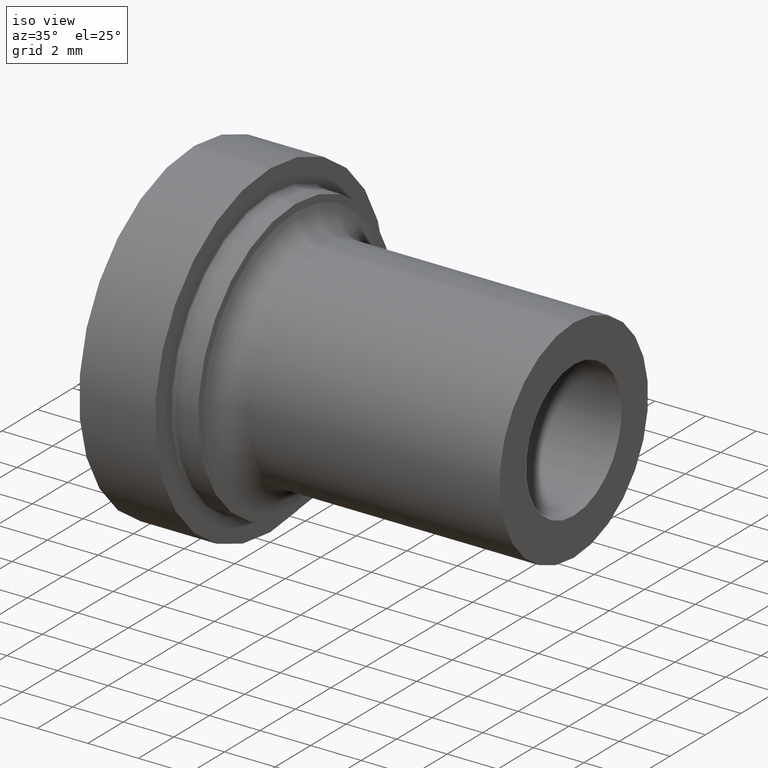
[diagram: clean part render]
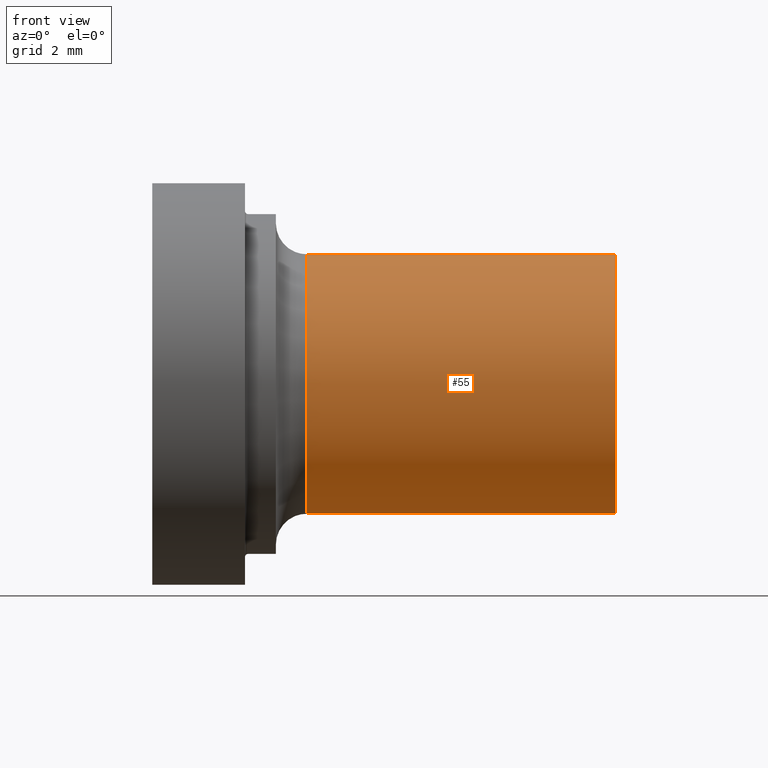
[diagram: tour spotlight — one face highlighted and labeled with its STEP entity id]
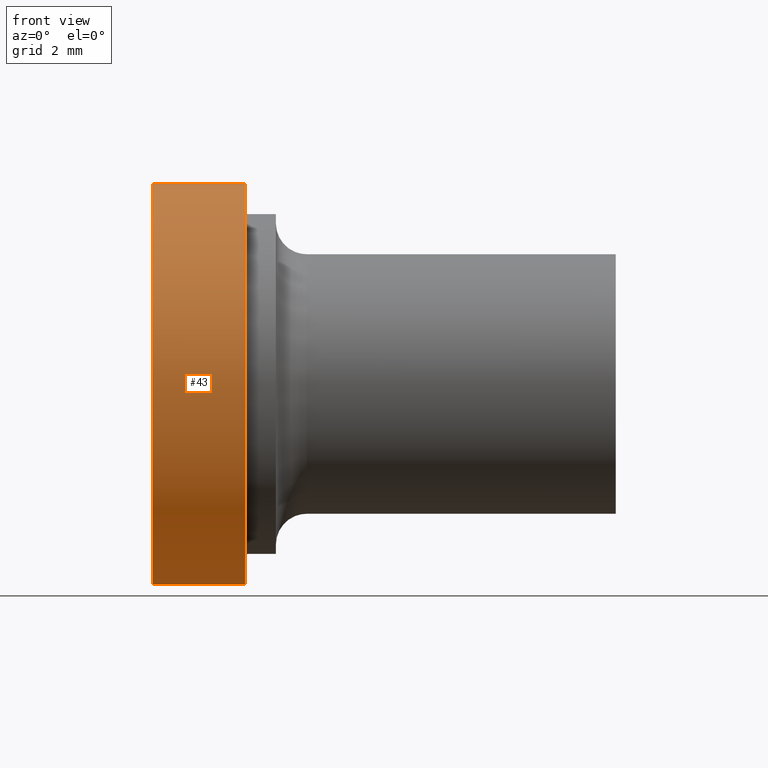
[diagram: tour spotlight — one face highlighted and labeled with its STEP entity id]
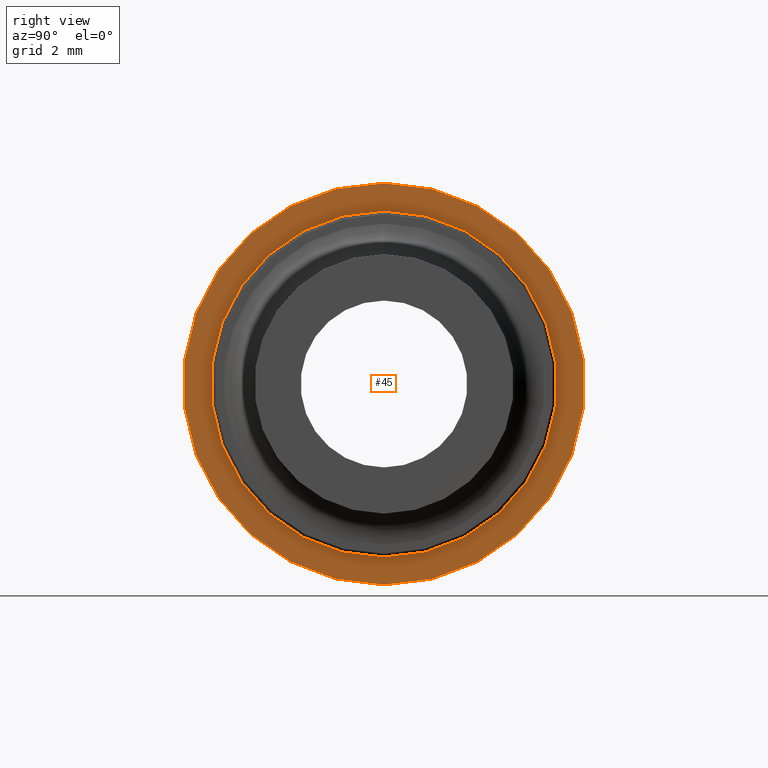
[diagram: tour spotlight — one face highlighted and labeled with its STEP entity id]
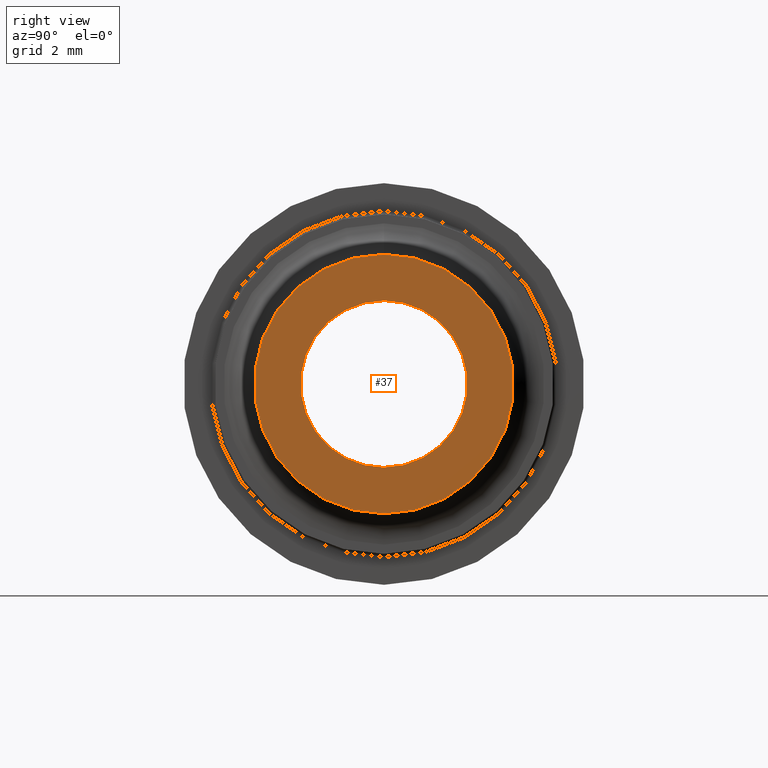
[diagram: tour spotlight — one face highlighted and labeled with its STEP entity id]
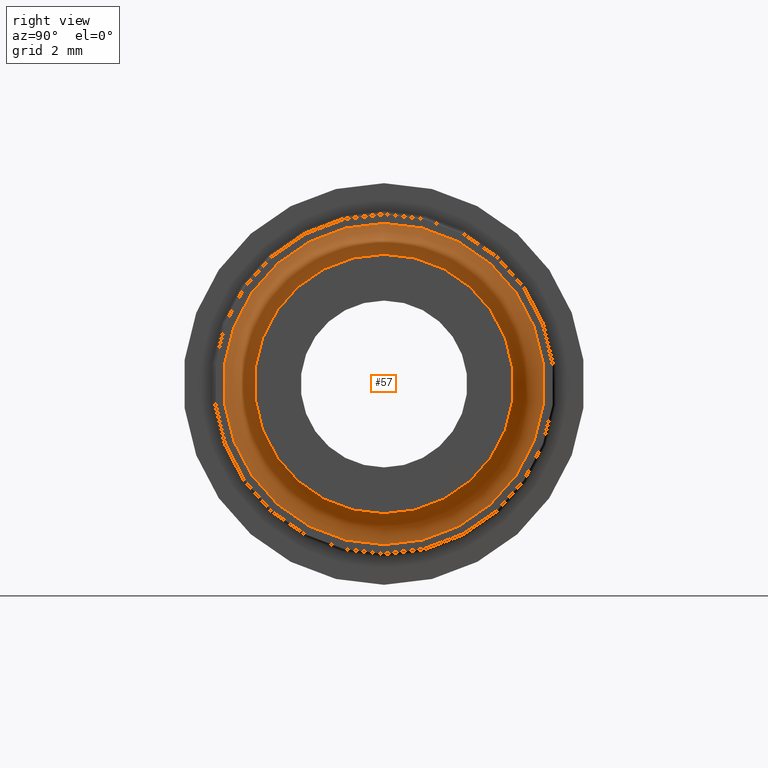
[diagram: tour spotlight — one face highlighted and labeled with its STEP entity id]
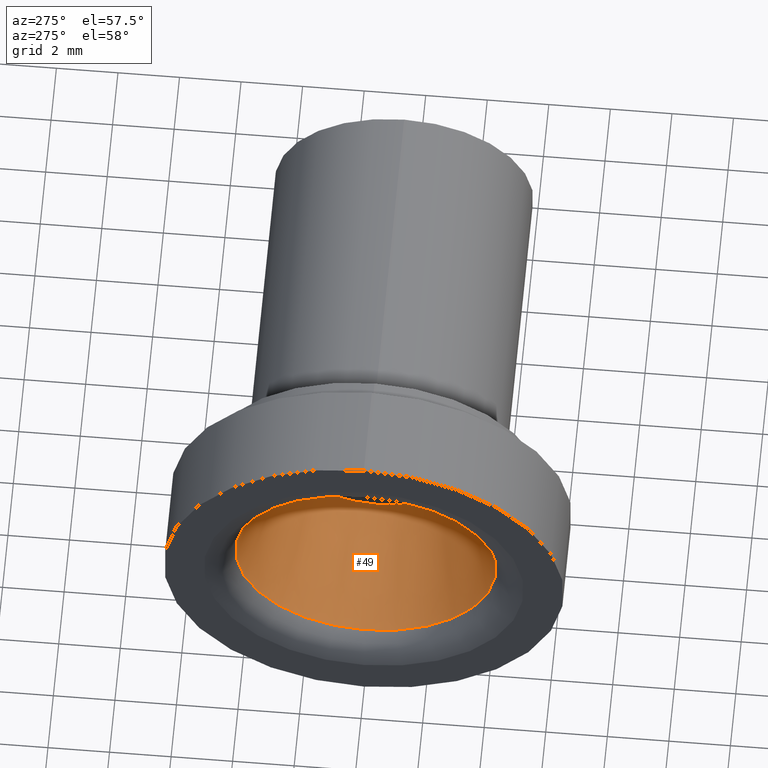
[diagram: tour spotlight — one face highlighted and labeled with its STEP entity id]
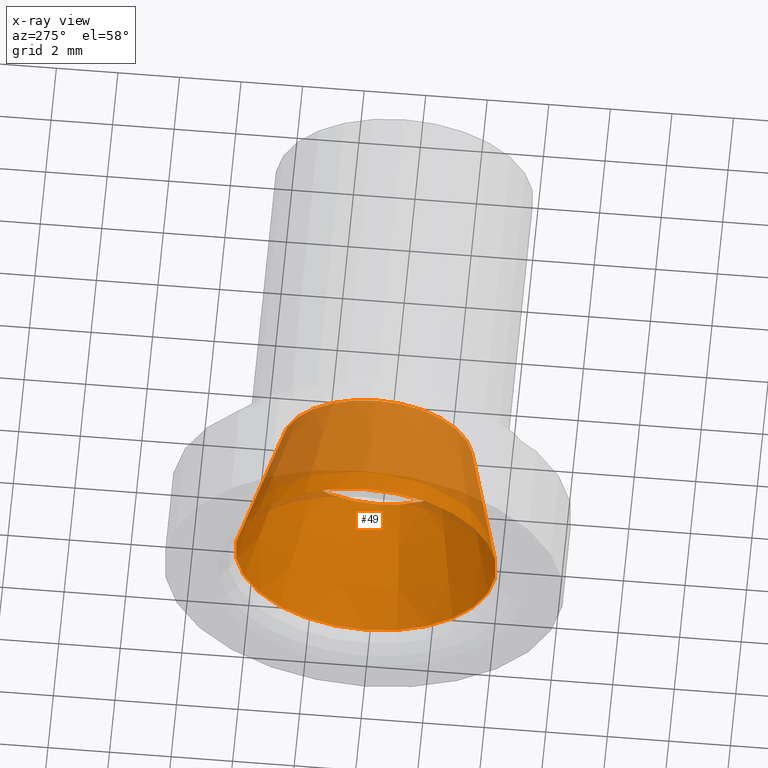
[diagram: x-ray of the same camera — body ghosted, this tour face saturated]
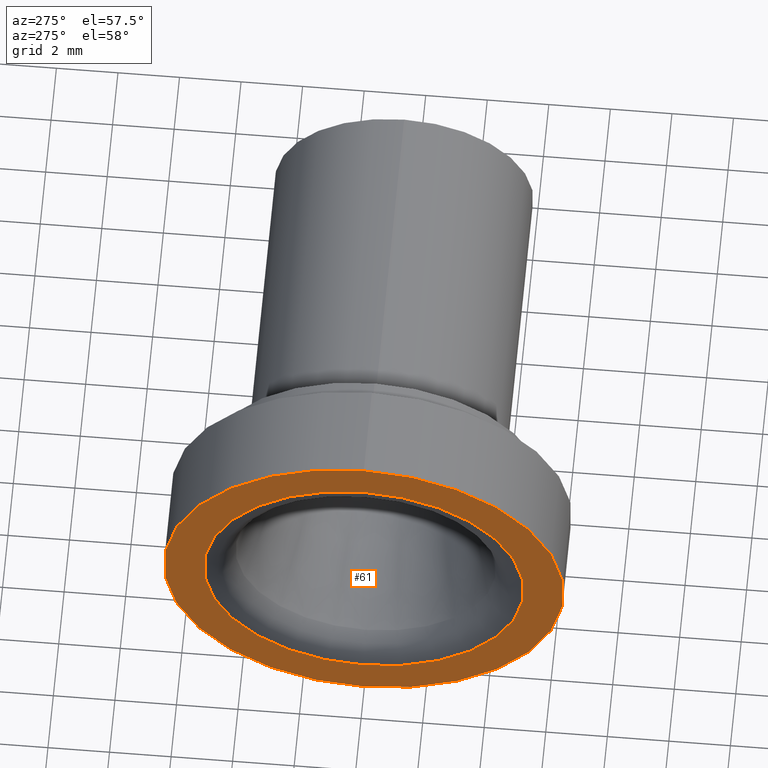
[diagram: tour spotlight — one face highlighted and labeled with its STEP entity id]
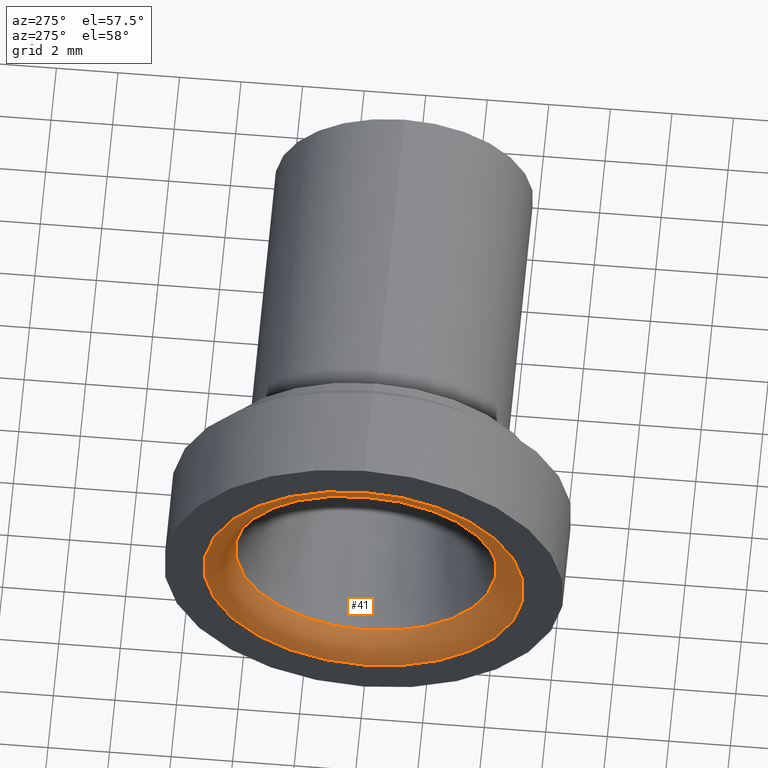
[diagram: tour spotlight — one face highlighted and labeled with its STEP entity id]
A machine part: a face-by-face anatomy tour. The part has 13 B-rep faces; the first image is the clean iso view, then the 8 largest visible faces are spotlighted one at a time (largest first), each with its STEP entity span.

Face 1 — front view, entity #55. In plain terms, the highlighted cylindrical surface (bore or boss wall) has radius 4.2 mm, axis along (1, -0, -0).
Definition (entity closure, byte-faithful):
#55 = ADVANCED_FACE( '', ( #116, #117 ), #118, .T. );
#116 = FACE_OUTER_BOUND( '', #175, .T. );
#117 = FACE_OUTER_BOUND( '', #176, .T. );
#118 = CYLINDRICAL_SURFACE( '', #177, 4.20000000000000 );
#175 = EDGE_LOOP( '', ( #246 ) );
#176 = EDGE_LOOP( '', ( #247 ) );
#177 = AXIS2_PLACEMENT_3D( '', #248, #249, #250 );
#246 = ORIENTED_EDGE( '', *, *, #291, .F. );
#247 = ORIENTED_EDGE( '', *, *, #271, .T. );
#248 = CARTESIAN_POINT( '', ( -60.0000000000000, 0.000000000000000, 0.000000000000000 ) );
#249 = DIRECTION( '', ( 1.00000000000000, -0.000000000000000, -0.000000000000000 ) );
#250 = DIRECTION( '', ( 0.000000000000000, 0.000000000000000, 1.00000000000000 ) );
#271 = EDGE_CURVE( '', #298, #298, #299, .T. );
#291 = EDGE_CURVE( '', #329, #329, #330, .T. );
#298 = VERTEX_POINT( '', #337 );
#299 = CIRCLE( '', #338, 4.20000000000000 );
#329 = VERTEX_POINT( '', #368 );
#330 = CIRCLE( '', #369, 4.20000000000000 );
#337 = CARTESIAN_POINT( '', ( 0.000000000000000, 0.000000000000000, 4.20000000000000 ) );
#338 = AXIS2_PLACEMENT_3D( '', #376, #377, #378 );
#368 = CARTESIAN_POINT( '', ( -10.0000000000000, 0.000000000000000, 4.20000000000000 ) );
#369 = AXIS2_PLACEMENT_3D( '', #409, #410, #411 );
#376 = CARTESIAN_POINT( '', ( 0.000000000000000, 0.000000000000000, 0.000000000000000 ) );
#377 = DIRECTION( '', ( -1.00000000000000, 0.000000000000000, 0.000000000000000 ) );
#378 = DIRECTION( '', ( 0.000000000000000, 0.000000000000000, 1.00000000000000 ) );
#409 = CARTESIAN_POINT( '', ( -10.0000000000000, 0.000000000000000, 0.000000000000000 ) );
#410 = DIRECTION( '', ( -1.00000000000000, 0.000000000000000, 0.000000000000000 ) );
#411 = DIRECTION( '', ( 0.000000000000000, 0.000000000000000, 1.00000000000000 ) );

Face 2 — front view, entity #43. In plain terms, the highlighted cylindrical surface (bore or boss wall) has radius 6.5 mm, axis along (1, -0, -0).
Definition (entity closure, byte-faithful):
#43 = ADVANCED_FACE( '', ( #92, #93 ), #94, .T. );
#92 = FACE_OUTER_BOUND( '', #151, .T. );
#93 = FACE_OUTER_BOUND( '', #152, .T. );
#94 = CYLINDRICAL_SURFACE( '', #153, 6.50000000000000 );
#151 = EDGE_LOOP( '', ( #210 ) );
#152 = EDGE_LOOP( '', ( #211 ) );
#153 = AXIS2_PLACEMENT_3D( '', #212, #213, #214 );
#210 = ORIENTED_EDGE( '', *, *, #279, .T. );
#211 = ORIENTED_EDGE( '', *, *, #280, .F. );
#212 = CARTESIAN_POINT( '', ( -60.0000000000000, 0.000000000000000, 0.000000000000000 ) );
#213 = DIRECTION( '', ( 1.00000000000000, -0.000000000000000, -0.000000000000000 ) );
#214 = DIRECTION( '', ( 0.000000000000000, 0.000000000000000, 1.00000000000000 ) );
#279 = EDGE_CURVE( '', #311, #311, #312, .T. );
#280 = EDGE_CURVE( '', #313, #313, #314, .T. );
#311 = VERTEX_POINT( '', #350 );
#312 = CIRCLE( '', #351, 6.50000000000000 );
#313 = VERTEX_POINT( '', #352 );
#314 = CIRCLE( '', #353, 6.50000000000000 );
#350 = CARTESIAN_POINT( '', ( -12.0000000000000, 0.000000000000000, 6.50000000000000 ) );
#351 = AXIS2_PLACEMENT_3D( '', #391, #392, #393 );
#352 = CARTESIAN_POINT( '', ( -15.0000000000000, 0.000000000000000, 6.50000000000000 ) );
#353 = AXIS2_PLACEMENT_3D( '', #394, #395, #396 );
#391 = CARTESIAN_POINT( '', ( -12.0000000000000, 0.000000000000000, 0.000000000000000 ) );
#392 = DIRECTION( '', ( -1.00000000000000, 0.000000000000000, 0.000000000000000 ) );
#393 = DIRECTION( '', ( 0.000000000000000, 0.000000000000000, 1.00000000000000 ) );
#394 = CARTESIAN_POINT( '', ( -15.0000000000000, 0.000000000000000, 0.000000000000000 ) );
#395 = DIRECTION( '', ( -1.00000000000000, 0.000000000000000, 0.000000000000000 ) );
#396 = DIRECTION( '', ( 0.000000000000000, 0.000000000000000, 1.00000000000000 ) );

Face 3 — right view, entity #45. In plain terms, the highlighted planar face has unit normal (-1, 0, 0).
Definition (entity closure, byte-faithful):
#45 = ADVANCED_FACE( '', ( #96, #97 ), #98, .F. );
#96 = FACE_BOUND( '', #155, .T. );
#97 = FACE_OUTER_BOUND( '', #156, .T. );
#98 = PLANE( '', #157 );
#155 = EDGE_LOOP( '', ( #216 ) );
#156 = EDGE_LOOP( '', ( #217 ) );
#157 = AXIS2_PLACEMENT_3D( '', #218, #219, #220 );
#216 = ORIENTED_EDGE( '', *, *, #282, .T. );
#217 = ORIENTED_EDGE( '', *, *, #279, .F. );
#218 = CARTESIAN_POINT( '', ( -12.0000000000000, 0.000000000000000, 5.50000000000000 ) );
#219 = DIRECTION( '', ( -1.00000000000000, 0.000000000000000, 0.000000000000000 ) );
#220 = DIRECTION( '', ( 0.000000000000000, 0.000000000000000, 1.00000000000000 ) );
#279 = EDGE_CURVE( '', #311, #311, #312, .T. );
#282 = EDGE_CURVE( '', #316, #316, #317, .T. );
#311 = VERTEX_POINT( '', #350 );
#312 = CIRCLE( '', #351, 6.50000000000000 );
#316 = VERTEX_POINT( '', #355 );
#317 = CIRCLE( '', #356, 5.60000000000000 );
#350 = CARTESIAN_POINT( '', ( -12.0000000000000, 0.000000000000000, 6.50000000000000 ) );
#351 = AXIS2_PLACEMENT_3D( '', #391, #392, #393 );
#355 = CARTESIAN_POINT( '', ( -12.0000000000000, 0.000000000000000, 5.60000000000000 ) );
#356 = AXIS2_PLACEMENT_3D( '', #397, #398, #399 );
#391 = CARTESIAN_POINT( '', ( -12.0000000000000, 0.000000000000000, 0.000000000000000 ) );
#392 = DIRECTION( '', ( -1.00000000000000, 0.000000000000000, 0.000000000000000 ) );
#393 = DIRECTION( '', ( 0.000000000000000, 0.000000000000000, 1.00000000000000 ) );
#397 = CARTESIAN_POINT( '', ( -12.0000000000000, 0.000000000000000, 0.000000000000000 ) );
#398 = DIRECTION( '', ( -1.00000000000000, 0.000000000000000, 0.000000000000000 ) );
#399 = DIRECTION( '', ( 0.000000000000000, 0.000000000000000, 1.00000000000000 ) );

Face 4 — right view, entity #37. In plain terms, the highlighted planar face has unit normal (-1, 0, 0).
Definition (entity closure, byte-faithful):
#37 = ADVANCED_FACE( '', ( #80, #81 ), #82, .F. );
#80 = FACE_BOUND( '', #139, .T. );
#81 = FACE_OUTER_BOUND( '', #140, .T. );
#82 = PLANE( '', #141 );
#139 = EDGE_LOOP( '', ( #192 ) );
#140 = EDGE_LOOP( '', ( #193 ) );
#141 = AXIS2_PLACEMENT_3D( '', #194, #195, #196 );
#192 = ORIENTED_EDGE( '', *, *, #270, .T. );
#193 = ORIENTED_EDGE( '', *, *, #271, .F. );
#194 = CARTESIAN_POINT( '', ( 0.000000000000000, 0.000000000000000, 0.000000000000000 ) );
#195 = DIRECTION( '', ( -1.00000000000000, 0.000000000000000, 0.000000000000000 ) );
#196 = DIRECTION( '', ( 0.000000000000000, 0.000000000000000, 1.00000000000000 ) );
#270 = EDGE_CURVE( '', #296, #296, #297, .T. );
#271 = EDGE_CURVE( '', #298, #298, #299, .T. );
#296 = VERTEX_POINT( '', #335 );
#297 = CIRCLE( '', #336, 2.70000000000000 );
#298 = VERTEX_POINT( '', #337 );
#299 = CIRCLE( '', #338, 4.20000000000000 );
#335 = CARTESIAN_POINT( '', ( 0.000000000000000, 0.000000000000000, 2.70000000000000 ) );
#336 = AXIS2_PLACEMENT_3D( '', #373, #374, #375 );
#337 = CARTESIAN_POINT( '', ( 0.000000000000000, 0.000000000000000, 4.20000000000000 ) );
#338 = AXIS2_PLACEMENT_3D( '', #376, #377, #378 );
#373 = CARTESIAN_POINT( '', ( 0.000000000000000, 0.000000000000000, 3.67273485929464E-015 ) );
#374 = DIRECTION( '', ( -1.00000000000000, 0.000000000000000, 0.000000000000000 ) );
#375 = DIRECTION( '', ( 0.000000000000000, 0.000000000000000, 1.00000000000000 ) );
#376 = CARTESIAN_POINT( '', ( 0.000000000000000, 0.000000000000000, 0.000000000000000 ) );
#377 = DIRECTION( '', ( -1.00000000000000, 0.000000000000000, 0.000000000000000 ) );
#378 = DIRECTION( '', ( 0.000000000000000, 0.000000000000000, 1.00000000000000 ) );

Face 5 — right view, entity #57. In plain terms, the highlighted toroidal blend (fillet) surface has major radius 5.2 mm and minor (blend) radius 1 mm.
Definition (entity closure, byte-faithful):
#57 = ADVANCED_FACE( '', ( #120, #121 ), #122, .F. );
#120 = FACE_OUTER_BOUND( '', #179, .T. );
#121 = FACE_OUTER_BOUND( '', #180, .T. );
#122 = TOROIDAL_SURFACE( '', #181, 5.20000000000000, 1.00000000000000 );
#179 = EDGE_LOOP( '', ( #252 ) );
#180 = EDGE_LOOP( '', ( #253 ) );
#181 = AXIS2_PLACEMENT_3D( '', #254, #255, #256 );
#252 = ORIENTED_EDGE( '', *, *, #284, .F. );
#253 = ORIENTED_EDGE( '', *, *, #291, .T. );
#254 = CARTESIAN_POINT( '', ( -10.0000000000000, 0.000000000000000, 0.000000000000000 ) );
#255 = DIRECTION( '', ( -1.00000000000000, 0.000000000000000, 0.000000000000000 ) );
#256 = DIRECTION( '', ( 0.000000000000000, 0.000000000000000, 1.00000000000000 ) );
#284 = EDGE_CURVE( '', #319, #319, #320, .T. );
#291 = EDGE_CURVE( '', #329, #329, #330, .T. );
#319 = VERTEX_POINT( '', #358 );
#320 = CIRCLE( '', #359, 5.20000000000000 );
#329 = VERTEX_POINT( '', #368 );
#330 = CIRCLE( '', #369, 4.20000000000000 );
#358 = CARTESIAN_POINT( '', ( -11.0000000000000, 0.000000000000000, 5.20000000000000 ) );
#359 = AXIS2_PLACEMENT_3D( '', #400, #401, #402 );
#368 = CARTESIAN_POINT( '', ( -10.0000000000000, 0.000000000000000, 4.20000000000000 ) );
#369 = AXIS2_PLACEMENT_3D( '', #409, #410, #411 );
#400 = CARTESIAN_POINT( '', ( -11.0000000000000, 0.000000000000000, 0.000000000000000 ) );
#401 = DIRECTION( '', ( -1.00000000000000, 0.000000000000000, 0.000000000000000 ) );
#402 = DIRECTION( '', ( 0.000000000000000, 0.000000000000000, 1.00000000000000 ) );
#409 = CARTESIAN_POINT( '', ( -10.0000000000000, 0.000000000000000, 0.000000000000000 ) );
#410 = DIRECTION( '', ( -1.00000000000000, 0.000000000000000, 0.000000000000000 ) );
#411 = DIRECTION( '', ( 0.000000000000000, 0.000000000000000, 1.00000000000000 ) );

Face 6 — auxiliary view, entity #49. An x-ray twin of the same camera follows (body ghosted, this face saturated) — the face is partly hidden behind the body. In plain terms, the highlighted conical surface has half-angle 15.16 deg.
Definition (entity closure, byte-faithful):
#49 = ADVANCED_FACE( '', ( #104, #105 ), #106, .F. );
#104 = FACE_OUTER_BOUND( '', #163, .T. );
#105 = FACE_BOUND( '', #164, .T. );
#106 = CONICAL_SURFACE( '', #165, 3.11760748794732, 0.264591631106884 );
#163 = EDGE_LOOP( '', ( #228 ) );
#164 = EDGE_LOOP( '', ( #229 ) );
#165 = AXIS2_PLACEMENT_3D( '', #230, #231, #232 );
#228 = ORIENTED_EDGE( '', *, *, #277, .T. );
#229 = ORIENTED_EDGE( '', *, *, #286, .F. );
#230 = CARTESIAN_POINT( '', ( -10.1381815907856, 0.000000000000000, 0.000000000000000 ) );
#231 = DIRECTION( '', ( -1.00000000000000, 0.000000000000000, -0.000000000000000 ) );
#232 = DIRECTION( '', ( 0.000000000000000, 0.000000000000000, 1.00000000000000 ) );
#277 = EDGE_CURVE( '', #308, #308, #309, .T. );
#286 = EDGE_CURVE( '', #322, #322, #323, .T. );
#308 = VERTEX_POINT( '', #347 );
#309 = CIRCLE( '', #348, 4.23480062399561 );
#322 = VERTEX_POINT( '', #361 );
#323 = CIRCLE( '', #362, 3.11760748794732 );
#347 = CARTESIAN_POINT( '', ( -14.2615151325655, 0.000000000000000, 4.23480062399561 ) );
#348 = AXIS2_PLACEMENT_3D( '', #388, #389, #390 );
#361 = CARTESIAN_POINT( '', ( -10.1381815907856, 0.000000000000000, 3.11760748794732 ) );
#362 = AXIS2_PLACEMENT_3D( '', #403, #404, #405 );
#388 = CARTESIAN_POINT( '', ( -14.2615151325655, 0.000000000000000, 0.000000000000000 ) );
#389 = DIRECTION( '', ( -1.00000000000000, 0.000000000000000, 0.000000000000000 ) );
#390 = DIRECTION( '', ( 0.000000000000000, 0.000000000000000, 1.00000000000000 ) );
#403 = CARTESIAN_POINT( '', ( -10.1381815907856, 0.000000000000000, 0.000000000000000 ) );
#404 = DIRECTION( '', ( -1.00000000000000, 0.000000000000000, 0.000000000000000 ) );
#405 = DIRECTION( '', ( 0.000000000000000, 0.000000000000000, 1.00000000000000 ) );

Face 7 — auxiliary view, entity #61. In plain terms, the highlighted planar face has unit normal (1, 0, 0).
Definition (entity closure, byte-faithful):
#61 = ADVANCED_FACE( '', ( #128, #129 ), #130, .F. );
#128 = FACE_OUTER_BOUND( '', #187, .T. );
#129 = FACE_BOUND( '', #188, .T. );
#130 = PLANE( '', #189 );
#187 = EDGE_LOOP( '', ( #264 ) );
#188 = EDGE_LOOP( '', ( #265 ) );
#189 = AXIS2_PLACEMENT_3D( '', #266, #267, #268 );
#264 = ORIENTED_EDGE( '', *, *, #280, .T. );
#265 = ORIENTED_EDGE( '', *, *, #276, .F. );
#266 = CARTESIAN_POINT( '', ( -15.0000000000000, 0.000000000000000, 6.23550952893730 ) );
#267 = DIRECTION( '', ( 1.00000000000000, 0.000000000000000, 0.000000000000000 ) );
#268 = DIRECTION( '', ( 0.000000000000000, 0.000000000000000, -1.00000000000000 ) );
#276 = EDGE_CURVE( '', #306, #306, #307, .T. );
#280 = EDGE_CURVE( '', #313, #313, #314, .T. );
#306 = VERTEX_POINT( '', #345 );
#307 = CIRCLE( '', #346, 5.20000000000000 );
#313 = VERTEX_POINT( '', #352 );
#314 = CIRCLE( '', #353, 6.50000000000000 );
#345 = CARTESIAN_POINT( '', ( -15.0000000000000, 0.000000000000000, 5.20000000000000 ) );
#346 = AXIS2_PLACEMENT_3D( '', #385, #386, #387 );
#352 = CARTESIAN_POINT( '', ( -15.0000000000000, 0.000000000000000, 6.50000000000000 ) );
#353 = AXIS2_PLACEMENT_3D( '', #394, #395, #396 );
#385 = CARTESIAN_POINT( '', ( -15.0000000000000, 0.000000000000000, 0.000000000000000 ) );
#386 = DIRECTION( '', ( -1.00000000000000, 0.000000000000000, 0.000000000000000 ) );
#387 = DIRECTION( '', ( 0.000000000000000, 0.000000000000000, 1.00000000000000 ) );
#394 = CARTESIAN_POINT( '', ( -15.0000000000000, 0.000000000000000, 0.000000000000000 ) );
#395 = DIRECTION( '', ( -1.00000000000000, 0.000000000000000, 0.000000000000000 ) );
#396 = DIRECTION( '', ( 0.000000000000000, 0.000000000000000, 1.00000000000000 ) );

Face 8 — auxiliary view, entity #41. In plain terms, the highlighted toroidal blend (fillet) surface has major radius 5.2 mm and minor (blend) radius 1 mm.
Definition (entity closure, byte-faithful):
#41 = ADVANCED_FACE( '', ( #88, #89 ), #90, .T. );
#88 = FACE_OUTER_BOUND( '', #147, .T. );
#89 = FACE_OUTER_BOUND( '', #148, .T. );
#90 = TOROIDAL_SURFACE( '', #149, 5.20000000000000, 1.00000000000000 );
#147 = EDGE_LOOP( '', ( #204 ) );
#148 = EDGE_LOOP( '', ( #205 ) );
#149 = AXIS2_PLACEMENT_3D( '', #206, #207, #208 );
#204 = ORIENTED_EDGE( '', *, *, #276, .T. );
#205 = ORIENTED_EDGE( '', *, *, #277, .F. );
#206 = CARTESIAN_POINT( '', ( -14.0000000000000, 0.000000000000000, 0.000000000000000 ) );
#207 = DIRECTION( '', ( -1.00000000000000, 0.000000000000000, 0.000000000000000 ) );
#208 = DIRECTION( '', ( 0.000000000000000, 0.000000000000000, 1.00000000000000 ) );
#276 = EDGE_CURVE( '', #306, #306, #307, .T. );
#277 = EDGE_CURVE( '', #308, #308, #309, .T. );
#306 = VERTEX_POINT( '', #345 );
#307 = CIRCLE( '', #346, 5.20000000000000 );
#308 = VERTEX_POINT( '', #347 );
#309 = CIRCLE( '', #348, 4.23480062399561 );
#345 = CARTESIAN_POINT( '', ( -15.0000000000000, 0.000000000000000, 5.20000000000000 ) );
#346 = AXIS2_PLACEMENT_3D( '', #385, #386, #387 );
#347 = CARTESIAN_POINT( '', ( -14.2615151325655, 0.000000000000000, 4.23480062399561 ) );
#348 = AXIS2_PLACEMENT_3D( '', #388, #389, #390 );
#385 = CARTESIAN_POINT( '', ( -15.0000000000000, 0.000000000000000, 0.000000000000000 ) );
#386 = DIRECTION( '', ( -1.00000000000000, 0.000000000000000, 0.000000000000000 ) );
#387 = DIRECTION( '', ( 0.000000000000000, 0.000000000000000, 1.00000000000000 ) );
#388 = CARTESIAN_POINT( '', ( -14.2615151325655, 0.000000000000000, 0.000000000000000 ) );
#389 = DIRECTION( '', ( -1.00000000000000, 0.000000000000000, 0.000000000000000 ) );
#390 = DIRECTION( '', ( 0.000000000000000, 0.000000000000000, 1.00000000000000 ) );